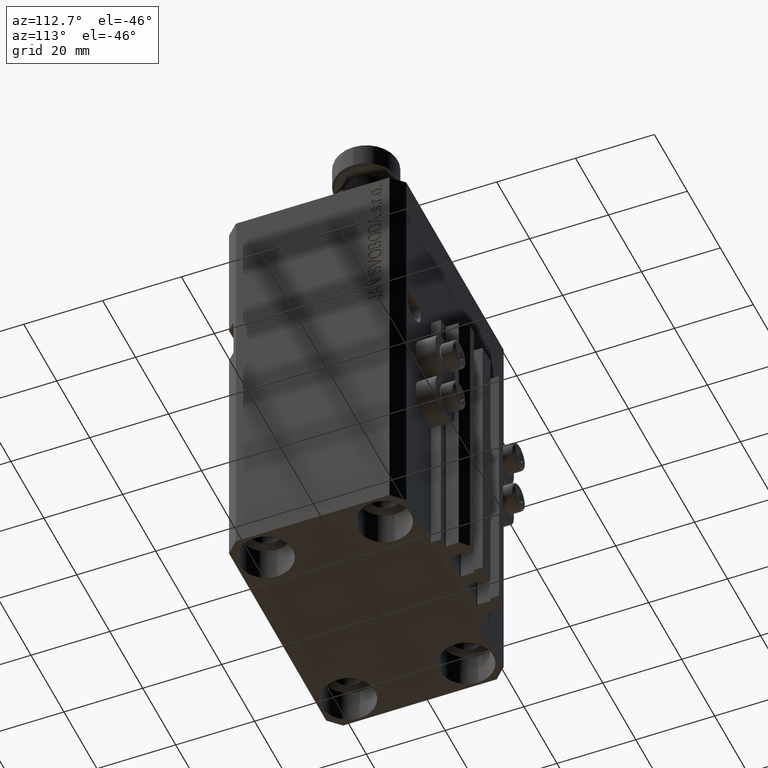
[diagram: clean part render]
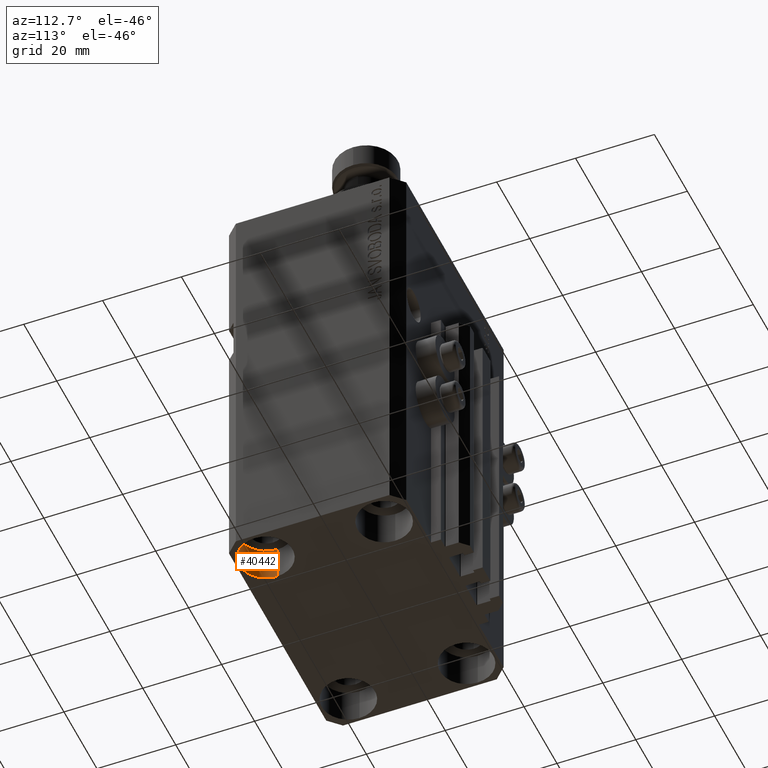
[diagram: same view with one face highlighted and labeled with its STEP entity id]
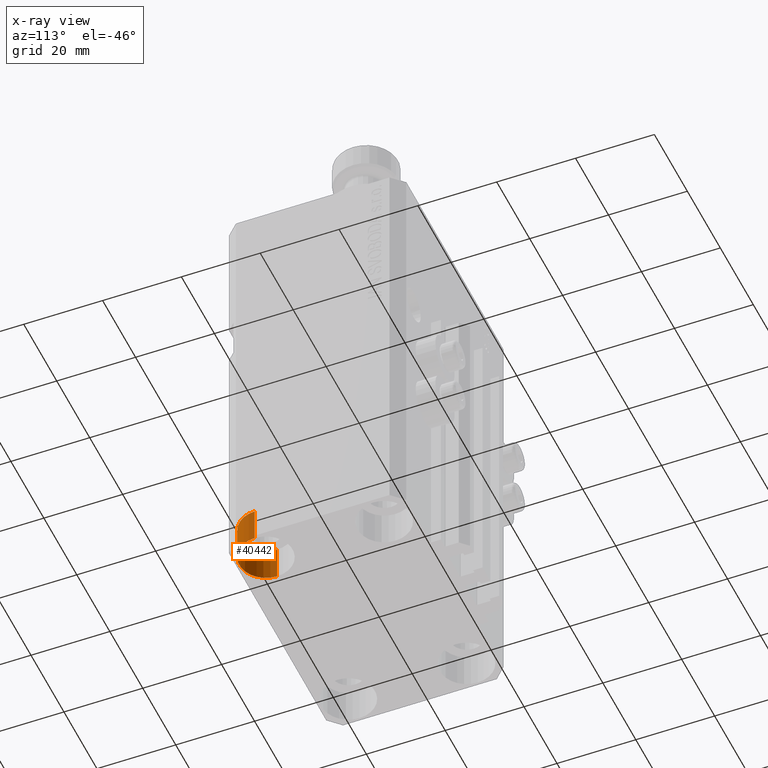
[diagram: x-ray of the same camera — body ghosted, the highlighted face saturated]
A machine part, auxiliary view. The second image highlights one B-rep face of the part: STEP entity #40442.
The next image is the same camera in x-ray: the body ghosted, the highlighted face saturated — about 0% of this face is hidden behind the body in this view.
In plain terms, the highlighted cylindrical surface (edge-blend (fillet) strip) has radius 6.75 mm, axis along (-0, -0, -1).
Its self-contained STEP definition (entity closure, byte-faithful):
#853 = DIRECTION ( 'NONE',  ( -0.000000000000000000, -0.000000000000000000, 1.000000000000000000 ) ) ;
#1693 = DIRECTION ( 'NONE',  ( -0.000000000000000000, -0.000000000000000000, -1.000000000000000000 ) ) ;
#1945 = CARTESIAN_POINT ( 'NONE',  ( 31.74999999997746869, -15.00000000000000000, -98.00000000000000000 ) ) ;
#3127 = EDGE_CURVE ( 'NONE', #21899, #9498, #34656, .T. ) ;
#3524 = DIRECTION ( 'NONE',  ( -0.000000000000000000, -0.000000000000000000, -1.000000000000000000 ) ) ;
#5701 = CARTESIAN_POINT ( 'NONE',  ( 25.00000000000000355, -15.00000000000000000, -98.00000000000000000 ) ) ;
#6180 = EDGE_CURVE ( 'NONE', #8314, #11901, #45310, .T. ) ;
#6683 = AXIS2_PLACEMENT_3D ( 'NONE', #16398, #853, #16155 ) ;
#8314 = VERTEX_POINT ( 'NONE', #8583 ) ;
#8583 = CARTESIAN_POINT ( 'NONE',  ( 18.25000000002253842, -15.00000000000000000, -107.0000000000000000 ) ) ;
#9498 = VERTEX_POINT ( 'NONE', #10013 ) ;
#10013 = CARTESIAN_POINT ( 'NONE',  ( 31.74999999997746869, -15.00000000000000000, -98.00000000000000000 ) ) ;
#10228 = ORIENTED_EDGE ( 'NONE', *, *, #6180, .F. ) ;
#11901 = VERTEX_POINT ( 'NONE', #14908 ) ;
#12930 = AXIS2_PLACEMENT_3D ( 'NONE', #34776, #1693, #30823 ) ;
#13304 = LINE ( 'NONE', #1945, #22057 ) ;
#13892 = ORIENTED_EDGE ( 'NONE', *, *, #3127, .T. ) ;
#14804 = VECTOR ( 'NONE', #3524, 1000.000000000000000 ) ;
#14908 = CARTESIAN_POINT ( 'NONE',  ( 31.74999999997746869, -15.00000000000000000, -107.0000000000000000 ) ) ;
#16155 = DIRECTION ( 'NONE',  ( 1.000000000000000000, 0.000000000000000000, 0.000000000000000000 ) ) ;
#16398 = CARTESIAN_POINT ( 'NONE',  ( 25.00000000000000355, -15.00000000000000000, -107.0000000000000000 ) ) ;
#19061 = EDGE_LOOP ( 'NONE', ( #13892, #42973, #10228, #38820 ) ) ;
#19730 = CYLINDRICAL_SURFACE ( 'NONE', #12930, 6.749999999977465137 ) ;
#20211 = FACE_OUTER_BOUND ( 'NONE', #19061, .T. ) ;
#21265 = DIRECTION ( 'NONE',  ( 1.000000000000000000, 0.000000000000000000, 0.000000000000000000 ) ) ;
#21899 = VERTEX_POINT ( 'NONE', #25558 ) ;
#22057 = VECTOR ( 'NONE', #28342, 1000.000000000000000 ) ;
#22389 = EDGE_CURVE ( 'NONE', #21899, #8314, #38074, .T. ) ;
#25558 = CARTESIAN_POINT ( 'NONE',  ( 18.25000000002253842, -15.00000000000000000, -98.00000000000000000 ) ) ;
#25949 = AXIS2_PLACEMENT_3D ( 'NONE', #5701, #28655, #21265 ) ;
#27784 = EDGE_CURVE ( 'NONE', #9498, #11901, #13304, .T. ) ;
#28342 = DIRECTION ( 'NONE',  ( -0.000000000000000000, -0.000000000000000000, -1.000000000000000000 ) ) ;
#28655 = DIRECTION ( 'NONE',  ( -0.000000000000000000, -0.000000000000000000, 1.000000000000000000 ) ) ;
#30823 = DIRECTION ( 'NONE',  ( -1.000000000000000000, 0.000000000000000000, 0.000000000000000000 ) ) ;
#34656 = CIRCLE ( 'NONE', #25949, 6.749999999977465137 ) ;
#34776 = CARTESIAN_POINT ( 'NONE',  ( 25.00000000000000355, -15.00000000000000000, -98.00000000000000000 ) ) ;
#37344 = CARTESIAN_POINT ( 'NONE',  ( 18.25000000002253842, -15.00000000000000000, -98.00000000000000000 ) ) ;
#38074 = LINE ( 'NONE', #37344, #14804 ) ;
#38820 = ORIENTED_EDGE ( 'NONE', *, *, #22389, .F. ) ;
#40442 = ADVANCED_FACE ( 'NONE', ( #20211 ), #19730, .F. ) ;
#42973 = ORIENTED_EDGE ( 'NONE', *, *, #27784, .T. ) ;
#45310 = CIRCLE ( 'NONE', #6683, 6.749999999977465137 ) ;